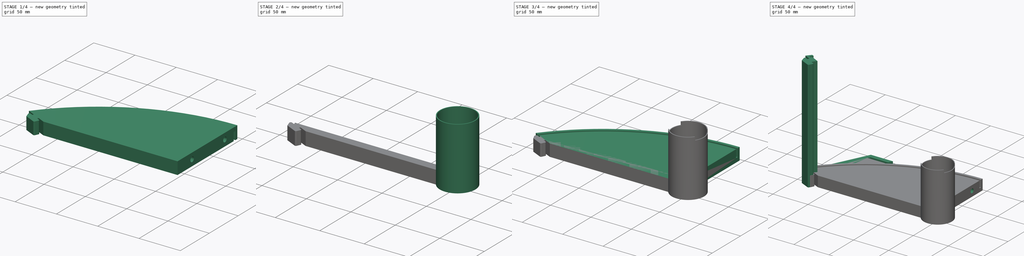
[diagram: build sequence overview — one tinted view per stage of 4, left to right]
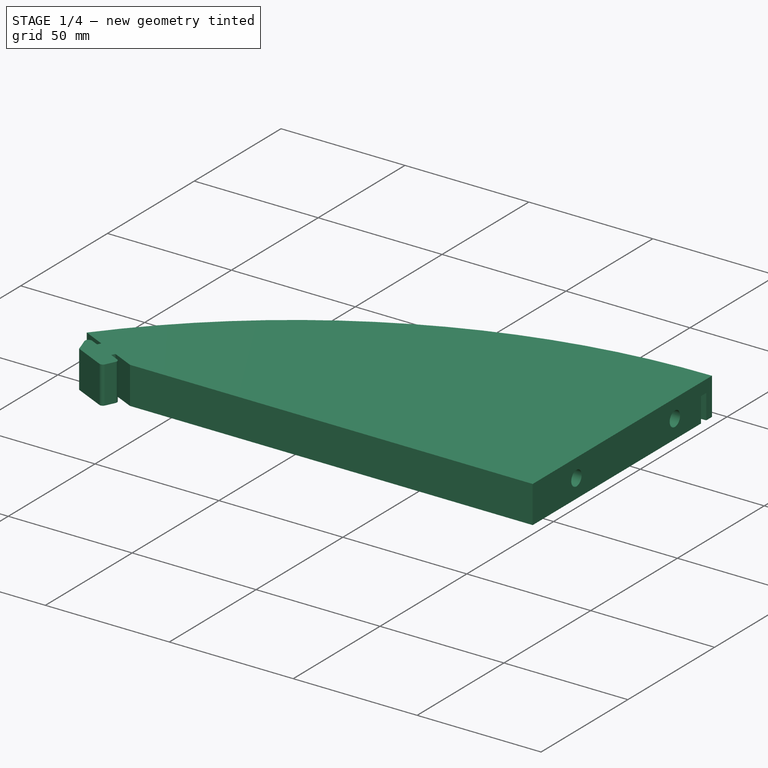
[diagram: stage 1 of 4 — iso view after this stage's code; geometry added in this stage tinted green]
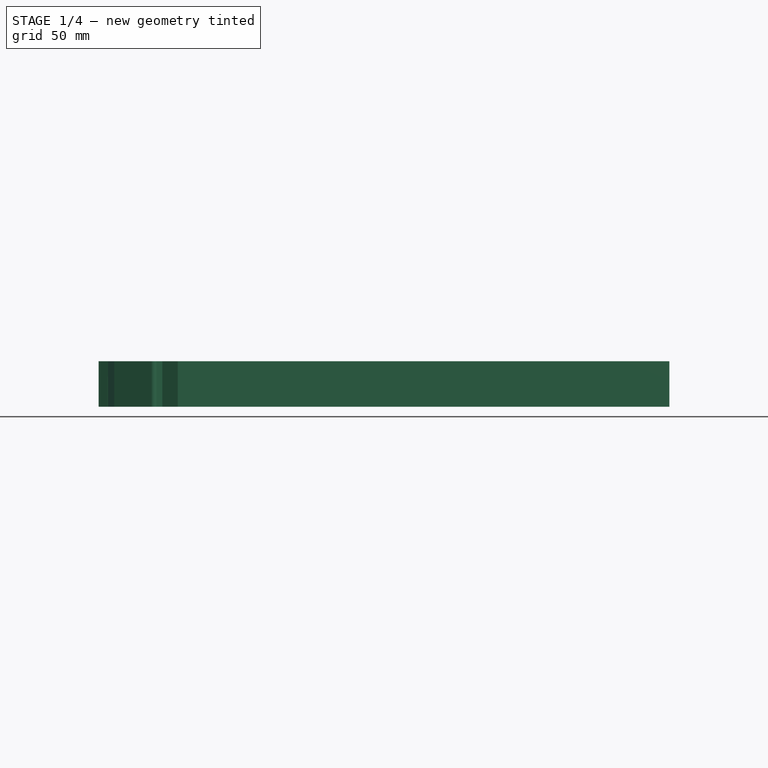
[diagram: stage 1 of 4 — front view after this stage's code; geometry added in this stage tinted green]
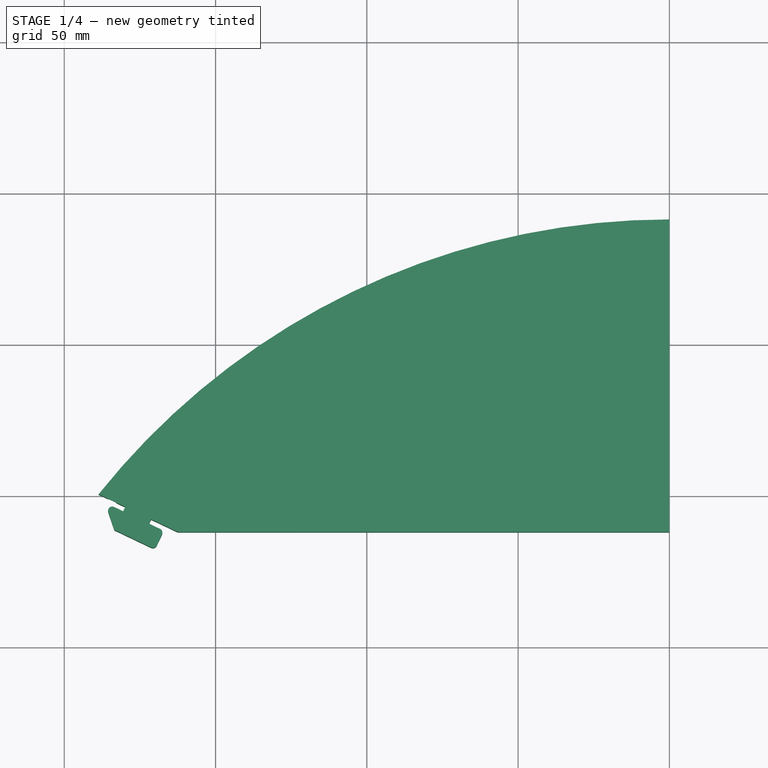
[diagram: stage 1 of 4 — top view after this stage's code; geometry added in this stage tinted green]
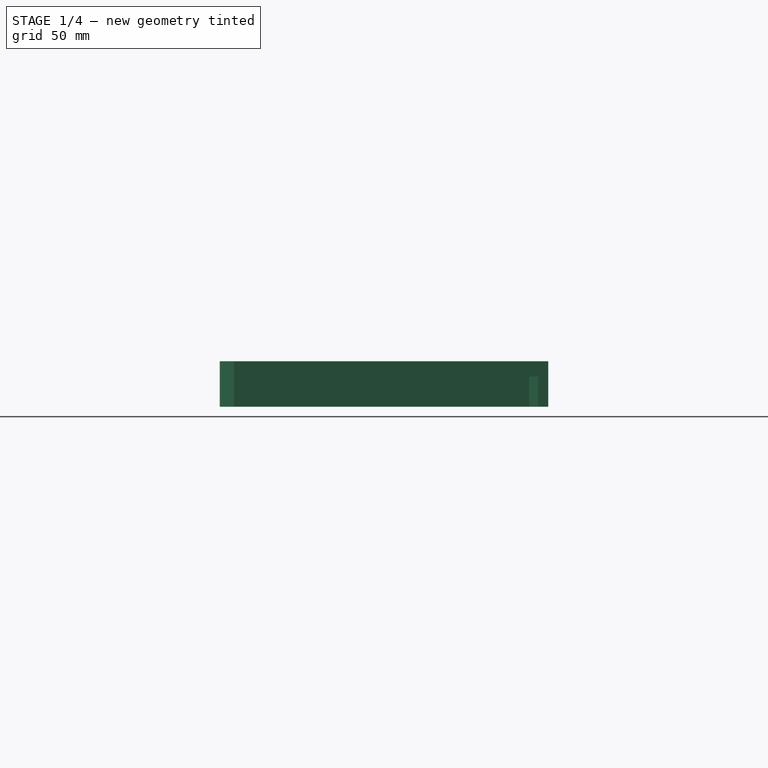
[diagram: stage 1 of 4 — right view after this stage's code; geometry added in this stage tinted green]
FCSTD DOCUMENT  (FreeCAD 1.1R40928 (Git))
Label: v400
License: All rights reserved
LicenseURL: http://en.wikipedia.org/wiki/All_rights_reserved
objects: Sketcher::SketchObject×12, PartDesign::Pocket×6, PartDesign::Body×6, App::Point×6, PartDesign::Pad×5, Measure::MeasureLength×1, App::DocumentObjectGroup×1, PartDesign::Fillet×1
note: 66 computed .brp shape members not serialized (recipe doc carries the construction recipe); baked Part::Feature solids carry a one-line shape summary decoded from their .brp

FEATURE [Sketcher::SketchObject] Sketch
  ArcFitTolerance = 0
  AttachmentSupport = -> [XY_Plane]
  ExternalTypes = [0]
  FullyConstrained = false
  MakeInternals = false
  MapMode = 5
  sketch-geometry (26):
    g0: LineSegment [constr] StartX=-188.65 StartY=0 StartZ=0 EndX=188.65 EndY=0 EndZ=0
    g1: LineSegment [constr] StartX=0 StartY=0 StartZ=0 EndX=0 EndY=-12 EndZ=0
    g2: LineSegment [constr] StartX=-162.5 StartY=-12 StartZ=0 EndX=162.5 EndY=-12 EndZ=0
    g3: LineSegment StartX=-162.5 StartY=-12 StartZ=0 EndX=0 EndY=-12 EndZ=0
    g4: LineSegment [constr] StartX=-188.65 StartY=0.47291 StartZ=0 EndX=-162.5 EndY=-12 EndZ=0
    g5: LineSegment [constr] StartX=-172.823 StartY=0.00552725 StartZ=0 EndX=-188.271 EndY=-32.3817 EndZ=0
    g6: LineSegment [constr] StartX=-179.862 StartY=-3.71862 StartZ=0 EndX=-171.288 EndY=-7.80847 EndZ=0
    g7: LineSegment StartX=-188.65 StartY=0.47291 StartZ=0 EndX=-179.862 EndY=-3.71862 EndZ=0
    g8: LineSegment StartX=-162.5 StartY=-12 StartZ=0 EndX=-171.288 EndY=-7.80847 EndZ=0
    g9: LineSegment StartX=-171.288 StartY=-7.80847 StartZ=0 EndX=-171.977 EndY=-9.25261 EndZ=0
    g10: LineSegment StartX=-174.728 StartY=-15.474 StartZ=0 EndX=-182.437 EndY=-11.7971 EndZ=0
    g11: LineSegment StartX=-180.551 StartY=-5.16275 StartZ=0 EndX=-179.862 EndY=-3.71862 EndZ=0
    g12: LineSegment StartX=-180.551 StartY=-5.16275 StartZ=0 EndX=-183.53 EndY=-3.74207 EndZ=0
    g13: LineSegment StartX=-183.479 StartY=-11.3003 StartZ=0 EndX=-182.437 EndY=-11.7971 EndZ=0
    g14: LineSegment StartX=-171.977 StartY=-9.25261 StartZ=0 EndX=-168.366 EndY=-10.9747 EndZ=0
    g15: LineSegment StartX=-167.705 StartY=-12.841 StartZ=0 EndX=-169.427 EndY=-16.4513 EndZ=0
    g16: LineSegment StartX=-171.294 StartY=-17.1122 StartZ=0 EndX=-174.728 EndY=-15.474 EndZ=0
    g17: ArcOfCircle CenterX=-168.969 CenterY=-12.2383 CenterZ=0 NormalX=0 NormalY=0 NormalZ=1 AngleXU=0 Radius=1.4 StartAngle=5.83813 EndAngle=7.40892
    g18: ArcOfCircle CenterX=-170.691 CenterY=-15.8486 CenterZ=0 NormalX=0 NormalY=0 NormalZ=1 AngleXU=0 Radius=1.4 StartAngle=4.26733 EndAngle=5.83813
    g19: LineSegment StartX=-185.458 StartY=-5.45478 StartZ=0 EndX=-183.479 EndY=-11.3003 EndZ=0
    g20: ArcOfCircle CenterX=-184.132 CenterY=-5.00569 CenterZ=0 NormalX=0 NormalY=0 NormalZ=1 AngleXU=0 Radius=1.4 StartAngle=1.12574 EndAngle=3.46815
    g21: LineSegment [constr] StartX=-179.862 StartY=-3.71862 StartZ=0 EndX=-185.587 EndY=-15.7197 EndZ=0
    g22: LineSegment [constr] StartX=-171.288 StartY=-7.80847 StartZ=0 EndX=-177.012 EndY=-19.8096 EndZ=0
    g23: GeomPoint [constr] X=0 Y=-150 Z=0
    g24: ArcOfCircle CenterX=0 CenterY=-150 CenterZ=0 NormalX=0 NormalY=0 NormalZ=1 AngleXU=0 Radius=241.311 StartAngle=1.5708 EndAngle=2.4683
    g25: LineSegment StartX=1.48e-14 StartY=91.3108 StartZ=0 EndX=0 EndY=-12 EndZ=0
  constraints (62):
    c: Symmetric(g0,g0,g-2)
    c: PointOnObject(g0,g-1)
    c: Coincident(g1,g-1)
    c: PointOnObject(g1,g-2)
    c: DistanceY(g1,g1) = 12
    c: Horizontal(g2)
    c: Symmetric(g2,g2,g1)
    c: Coincident(g4,g3)
    c: Symmetric(g4,g3,g5)
    c: PointOnObject(g6,g4)
    c: Distance(g6,g6) = 9.5
    c: Symmetric(g6,g6,g5)
    c: Coincident(g3,g2)
    c: Coincident(g3,g1)
    c: Coincident(g7,g6)
    c: Coincident(g8,g3)
    c: Coincident(g8,g6)
    c: Coincident(g9,g8)
    c: Coincident(g11,g7)
    c: Perpendicular(g9,g8)
    c: Parallel(g9,g11)
    c: DistanceX(g4,g1) = 188.65
    c: DistanceX(g3,g3) = 162.5
    c: Coincident(g13,g10)
    c: Coincident(g16,g10)
    c: Perpendicular(g5,g12)
    c: Parallel(g14,g12)
    c: Parallel(g13,g16)
    c: Distance(g12,g7) = 1.6
    c: Coincident(g11,g12)
    c: Coincident(g9,g14)
    c: Parallel(g12,g13)
    c: Parallel(g13,g10)
    c: Tangent(g14,g17) = 1.5708
    c: Tangent(g15,g17) = 1.5708
    c: Tangent(g15,g18) = 1.5708
    c: Tangent(g16,g18) = 1.5708
    c: Equal(g11,g9)
    c: Coincident(g13,g19)
    c: Perpendicular(g8,g15)
    c: Equal(g17,g18)
    c: Tangent(g12,g20) = -1.5708
    c: Tangent(g19,g20) = -1.5708
    c: Distance(g17,g18) = 4
    c: Radius(g17) = 1.4
    c: Coincident(g21,g7)
    c: PointOnObject(g13,g21)
    c: PointOnObject(g11,g21)
    c: Coincident(g22,g8)
    c: Symmetric(g21,g22,g5)
    c: Equal(g20,g18)
    c: Distance(g9,g14) = 4
    c: Distance(g12,g11) = 3.3
    c: Angle(g7,g0) = 0.445059
    c: Coincident(g7,g4)
    c: PointOnObject(g23,g-2)
    c: Distance(g1,g23) = 150
    c: Coincident(g24,g23)
    c: Coincident(g24,g7)
    c: PointOnObject(g24,g-2)
    c: Coincident(g25,g24)
    c: Coincident(g25,g3)
FEATURE [PartDesign::Pad] Pad
  Direction = (0,0,1)
  Length = 15
  Length2 = 10
  Profile = -> Sketch
  ReferenceAxis = -> Sketch [N_Axis]
  Suppressed = false
  Type = 0
FEATURE [Sketcher::SketchObject] Sketch001
  ArcFitTolerance = 0
  AttachmentOffset = pos=(0,0,-15) rot=(0,0,1;0rad)
  AttachmentSupport = -> [Pad]
  ExternalTypes = [0]
  FullyConstrained = false
  MakeInternals = false
  MapMode = 5
  sketch-geometry (6):
    g0: LineSegment [constr] StartX=0 StartY=0 StartZ=0 EndX=0 EndY=-150 EndZ=0
    g1: ArcOfCircle CenterX=0 CenterY=-150 CenterZ=0 NormalX=0 NormalY=0 NormalZ=1 AngleXU=0 Radius=235 StartAngle=1.5708 EndAngle=2.46394
    g2: ArcOfCircle CenterX=0 CenterY=-150 CenterZ=0 NormalX=0 NormalY=0 NormalZ=1 AngleXU=0 Radius=238 StartAngle=1.5708 EndAngle=2.46692
    g3: LineSegment StartX=1.46e-14 StartY=88 StartZ=0 EndX=1.44e-14 EndY=85 EndZ=0
    g4: LineSegment StartX=-185.858 StartY=-1.33601 StartZ=0 EndX=-183.076 EndY=-2.66282 EndZ=0
    g5: LineSegment [constr] StartX=-185.858 StartY=-1.33601 StartZ=0 EndX=0 EndY=0 EndZ=0
  constraints (15):
    c: Coincident(g0,g-1)
    c: Distance(g0) = 150
    c: PointOnObject(g0,g-2)
    c: Coincident(g1,g0)
    c: PointOnObject(g1,g-2)
    c: PointOnObject(g1,g-3)
    c: Radius(g1) = 235
    c: Coincident(g2,g1)
    c: PointOnObject(g2,g-3)
    c: PointOnObject(g2,g-2)
    c: Radius(g2) = 238
    c: Coincident(g3,g2)
    c: Coincident(g3,g1)
    c: Coincident(g4,g2)
    c: Coincident(g4,g1)
FEATURE [PartDesign::Pocket] Pocket
  BaseFeature = -> Pad
  Direction = (0,0,-1)
  Length = 10
  Length2 = 5
  Profile = -> Sketch001
  ReferenceAxis = -> Sketch001 [N_Axis]
  Reversed = true
  Suppressed = false
  Type = 0
FEATURE [Sketcher::SketchObject] Sketch004
  ArcFitTolerance = 0
  ExternalTypes = [0]
  FullyConstrained = false
  MakeInternals = false
  MapMode = 5
  Placement = pos=(1.7e-15,0,0) rot=(0.57735,0.57735,0.57735;2.0944rad)
  sketch-geometry (2):
    g0: Circle CenterX=13.2397 CenterY=7.5 CenterZ=0 NormalX=0 NormalY=0 NormalZ=1 AngleXU=0 Radius=3
    g1: Circle CenterX=69.9513 CenterY=7.5 CenterZ=0 NormalX=0 NormalY=0 NormalZ=1 AngleXU=0 Radius=3
  constraints (4):
    c: Diameter(g0) = 6
    c: Equal(g1,g0)
    c: DistanceY(g-1,g0) = 7.5
    c: DistanceY(g-1,g1) = 7.5
FEATURE [PartDesign::Pocket] Pocket003
  BaseFeature = -> Pocket
  Direction = (-1,-1e-16,1e-16)
  Length = 5
  Length2 = 5
  Profile = -> Sketch004
  ReferenceAxis = -> Sketch004 [N_Axis]
  Suppressed = false
  Type = 0
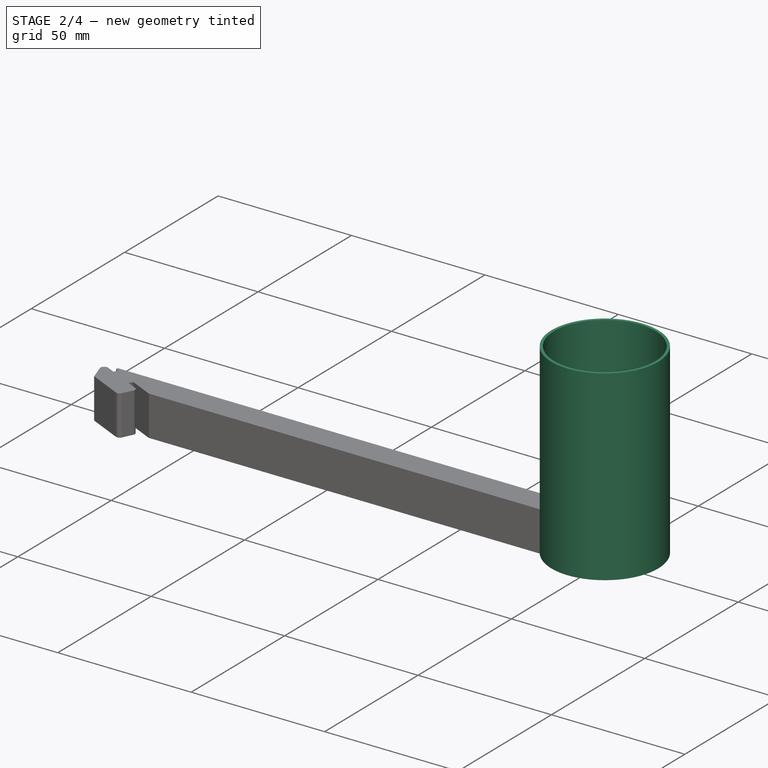
[diagram: stage 2 of 4 — iso view after this stage's code; geometry added in this stage tinted green]
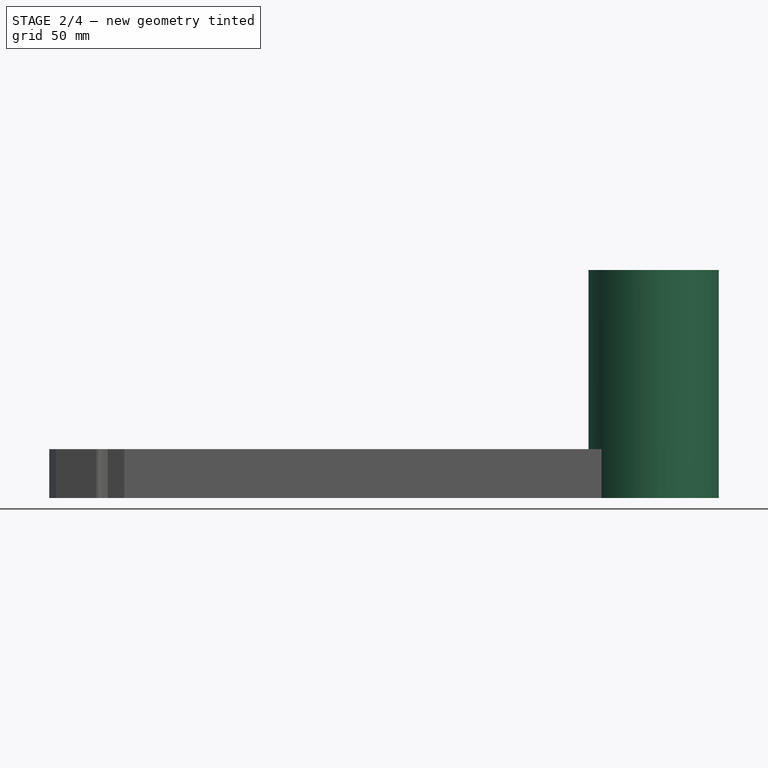
[diagram: stage 2 of 4 — front view after this stage's code; geometry added in this stage tinted green]
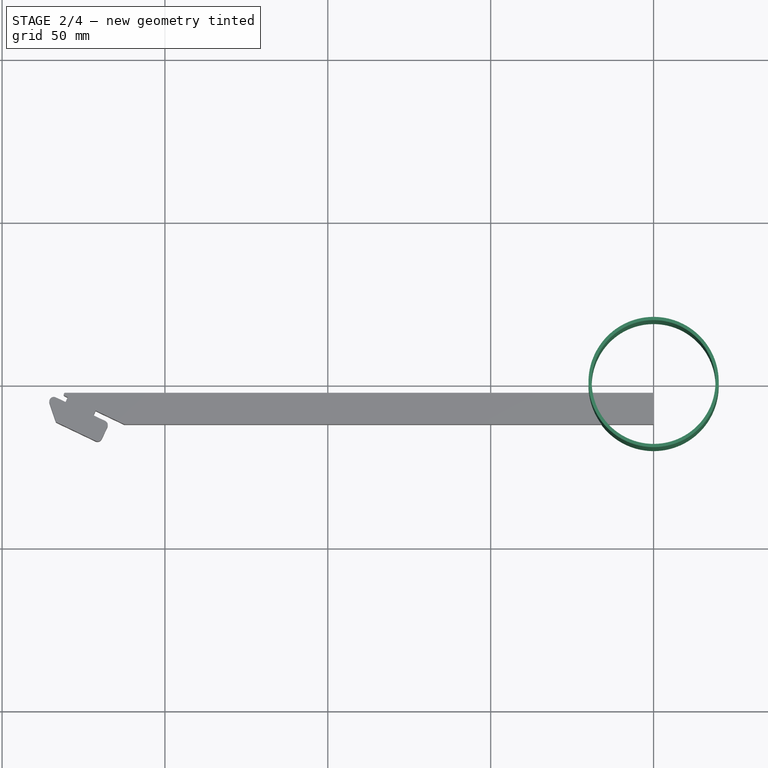
[diagram: stage 2 of 4 — top view after this stage's code; geometry added in this stage tinted green]
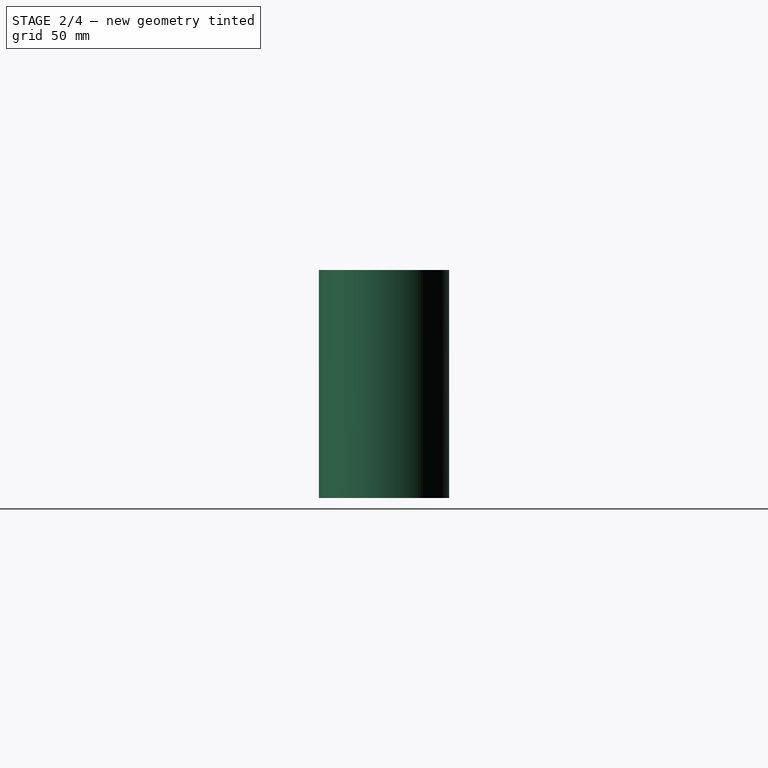
[diagram: stage 2 of 4 — right view after this stage's code; geometry added in this stage tinted green]
FEATURE [PartDesign::Body] Body006  label="Низ правая"
  AllowCompound = false
  Group = -> [Sketch012,Pad006,Sketch013,Pocket006,Sketch014,Pocket007]
  Origin = -> Origin006
  Placement = pos=(0,0,-16) rot=(0,0,1;0rad)
  Tip = -> Pocket007
FEATURE [App::Point] Origin007  label="Начало координат"
  Role = Origin
FEATURE [App::Point] Origin008  label="Начало координат"
  Role = Origin
FEATURE [App::Point] Origin010  label="Начало координат"
  Role = Origin
FEATURE [App::Point] Origin011  label="Начало координат"
  Role = Origin
FEATURE [App::Point] Origin015  label="Начало координат003"
  Role = Origin
FEATURE [Sketcher::SketchObject] Sketch016
  ArcFitTolerance = 1e-06
  AttachmentSupport = -> [XY_Plane008]
  ExternalTypes = [0]
  FullyConstrained = false
  MakeInternals = false
  MapMode = 5
  sketch-geometry (2):
    g0: ArcOfCircle CenterX=0 CenterY=-150.083 CenterZ=0 NormalX=0 NormalY=0 NormalZ=1 AngleXU=0 Radius=236.5 StartAngle=0.666751 EndAngle=2.47484
    g1: LineSegment StartX=-185.85 StartY=-3.82289 StartZ=0 EndX=185.85 EndY=-3.82289 EndZ=0
  constraints (6):
    c: Radius(g0) = 236.5
    c: PointOnObject(g0,g-2)
    c: Coincident(g1,g0)
    c: Coincident(g1,g0)
    c: DistanceX(g1,g1) = 371.7
    c: Horizontal(g1)
FEATURE [PartDesign::Body] Body008  label="Тело"
  AllowCompound = false
  Group = -> [Sketch016]
  Origin = -> Origin014
FEATURE [Measure::MeasureLength] Length  label="Length: 427,61 mm"
  Elements = -> [Body008]
  Length = 427.613
FEATURE [App::DocumentObjectGroup] Measurements
  Group = -> [Length]
FEATURE [Sketcher::SketchObject] Sketch007
  ArcFitTolerance = 0
  AttachmentSupport = -> [XY_Plane003]
  ExternalTypes = [0]
  FullyConstrained = true
  MakeInternals = false
  MapMode = 5
  sketch-geometry (2):
    g0: Circle CenterX=0 CenterY=0 CenterZ=0 NormalX=0 NormalY=0 NormalZ=1 AngleXU=0 Radius=20
    g1: Circle CenterX=0 CenterY=0 CenterZ=0 NormalX=0 NormalY=0 NormalZ=1 AngleXU=0 Radius=19
  constraints (4):
    c: Coincident(g0,g-1)
    c: Coincident(g1,g0)
    c: Radius(g0) = 20
    c: Radius(g1) = 19
FEATURE [PartDesign::Pad] Pad003
  Direction = (0,0,1)
  Length = 70
  Length2 = 10
  Profile = -> Sketch007
  ReferenceAxis = -> Sketch007 [N_Axis]
  Suppressed = false
  Type = 0
FEATURE [App::Point] Origin009  label="Начало координат"
  Role = Origin
FEATURE [PartDesign::Body] Body003  label="опора"
  AllowCompound = false
  Group = -> [Sketch007,Pad003,Sketch008,Pocket004]
  Origin = -> Origin003
  Placement = pos=(64,0,0) rot=(0,0,1;0rad)
  Tip = -> Pocket004
FEATURE [Sketcher::SketchObject] Sketch017
  ArcFitTolerance = 1e-06
  AttachmentSupport = -> [Pocket003]
  ExternalGeometry = -> [Pocket003]
  ExternalTypes = [0,0,0,0,0,0,0,0,0,0,0,0,0,0,0,0,0,0,0,0,0]
  FullyConstrained = true
  MakeInternals = false
  MapMode = 5
  Placement = pos=(0,0,0) rot=(1,0,0;3.14159rad)
  sketch-geometry (2):
    g0: LineSegment StartX=-182.798 StartY=2.31833 StartZ=0 EndX=0 EndY=2.31833 EndZ=0
    g1: LineSegment StartX=0 StartY=2.31833 StartZ=0 EndX=0 EndY=-85 EndZ=0
  constraints (5):
    c: Coincident(g-18,g0)
    c: PointOnObject(g0,g-23)
    c: Horizontal(g0)
    c: Coincident(g0,g1)
    c: Coincident(g1,g-23)
FEATURE [PartDesign::Pocket] Pocket008
  BaseFeature = -> Pocket003
  Direction = (0,0,1)
  Length = 5
  Length2 = 5
  Profile = -> Sketch017
  ReferenceAxis = -> Sketch017 [N_Axis]
  Refine = true
  Suppressed = false
  Type = 1
FEATURE [PartDesign::Fillet] Fillet
  Base = -> Pocket008 [Edge45]
  BaseFeature = -> Pocket008
  Radius = 0.5
  Refine = true
  SupportTransform = false
  Suppressed = false
  UseAllEdges = false
FEATURE [PartDesign::Body] Body  label="Низ левая"
  AllowCompound = false
  Group = -> [Sketch,Pad,Sketch001,Pocket,Sketch004,Pocket003,Sketch017,Pocket008,Fillet]
  Origin = -> Origin
  Placement = pos=(314,0,-3.85e-14) rot=(0,-1,0;3.14159rad)
  Tip = -> Fillet
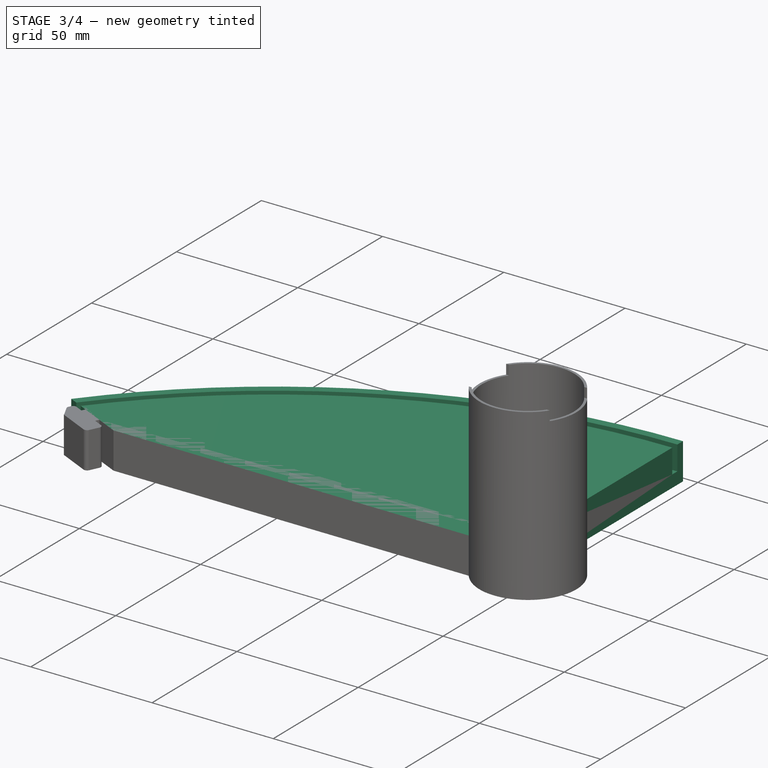
[diagram: stage 3 of 4 — iso view after this stage's code; geometry added in this stage tinted green]
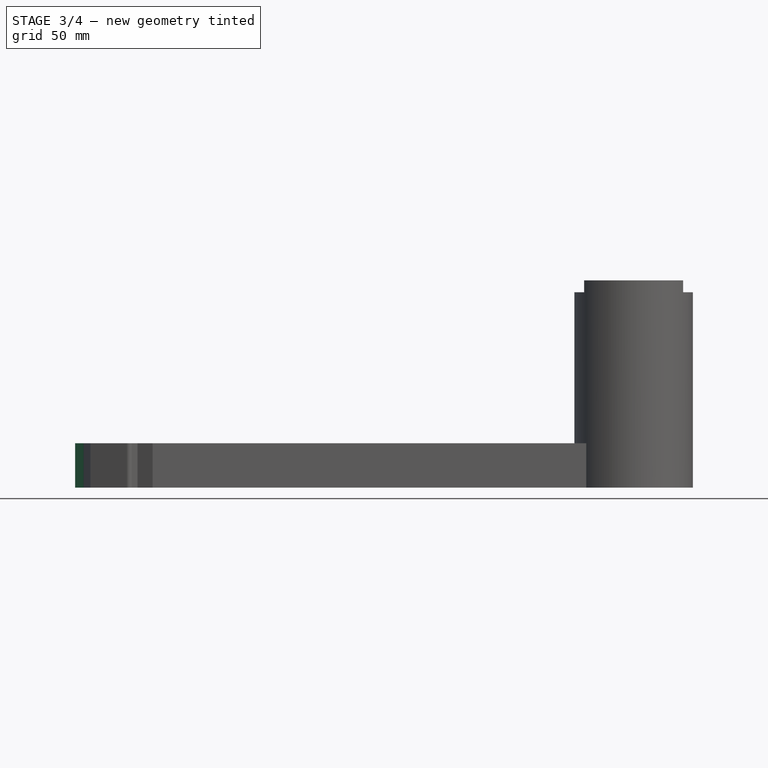
[diagram: stage 3 of 4 — front view after this stage's code; geometry added in this stage tinted green]
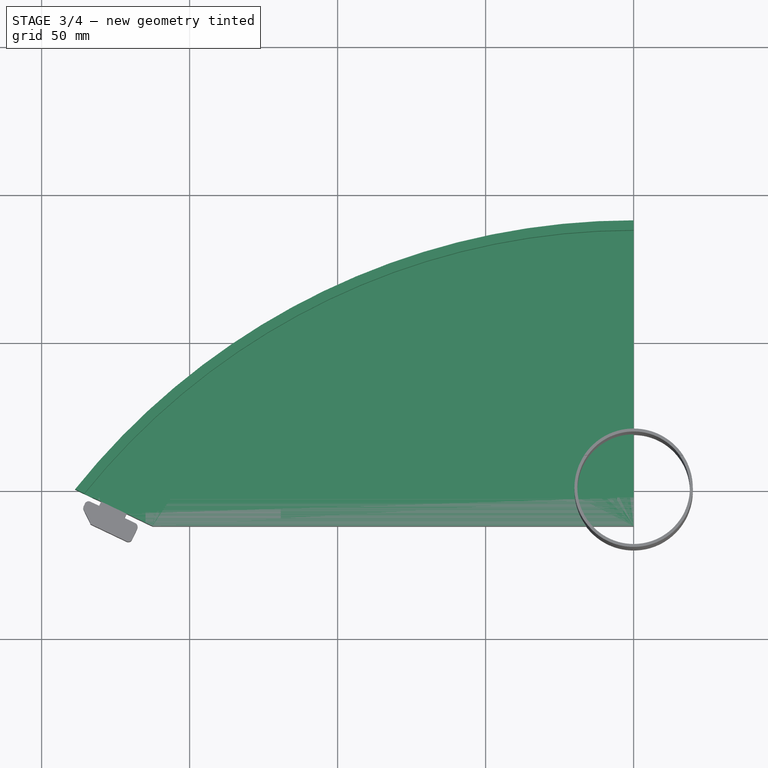
[diagram: stage 3 of 4 — top view after this stage's code; geometry added in this stage tinted green]
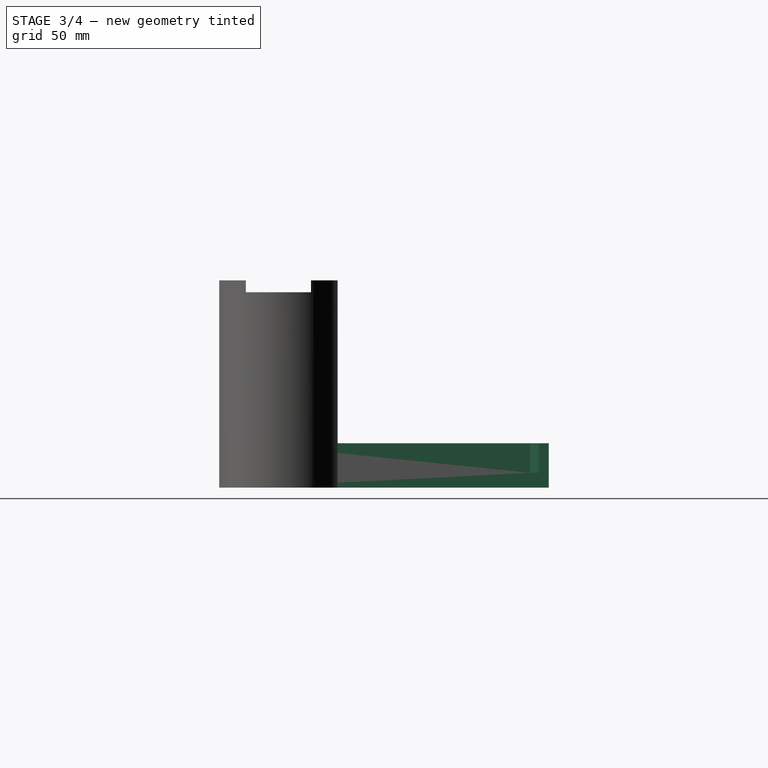
[diagram: stage 3 of 4 — right view after this stage's code; geometry added in this stage tinted green]
FEATURE [PartDesign::Body] Body005  label="передние салазки"
  AllowCompound = false
  Group = -> [Sketch010,Pad005]
  Origin = -> Origin005
  Placement = pos=(0,-176,0) rot=(0,0,1;0rad)
  Tip = -> Pad005
FEATURE [Sketcher::SketchObject] Sketch012
  ArcFitTolerance = 0
  AttachmentSupport = -> [XY_Plane006]
  ExternalTypes = [0]
  FullyConstrained = false
  MakeInternals = false
  MapMode = 5
  sketch-geometry (26):
    g0: LineSegment [constr] StartX=-188.65 StartY=0 StartZ=0 EndX=188.65 EndY=0 EndZ=0
    g1: LineSegment [constr] StartX=0 StartY=0 StartZ=0 EndX=0 EndY=-12 EndZ=0
    g2: LineSegment [constr] StartX=-162.5 StartY=-12 StartZ=0 EndX=162.5 EndY=-12 EndZ=0
    g3: LineSegment StartX=-162.5 StartY=-12 StartZ=0 EndX=0 EndY=-12 EndZ=0
    g4: LineSegment [constr] StartX=-188.65 StartY=0.47291 StartZ=0 EndX=-162.5 EndY=-12 EndZ=0
    g5: LineSegment [constr] StartX=-172.823 StartY=0.00543543 StartZ=0 EndX=-188.271 EndY=-32.3816 EndZ=0
    g6: LineSegment [constr] StartX=-179.862 StartY=-3.71862 StartZ=0 EndX=-171.288 EndY=-7.80847 EndZ=0
    g7: LineSegment StartX=-188.65 StartY=0.47291 StartZ=0 EndX=-179.862 EndY=-3.71862 EndZ=0
    g8: LineSegment StartX=-162.5 StartY=-12 StartZ=0 EndX=-171.288 EndY=-7.80847 EndZ=0
    g9: LineSegment StartX=-171.288 StartY=-7.80847 StartZ=0 EndX=-172.364 EndY=-10.0649 EndZ=0
    g10: LineSegment StartX=-174.728 StartY=-15.3633 StartZ=0 EndX=-182.609 EndY=-11.6044 EndZ=0
    g11: LineSegment StartX=-180.939 StartY=-5.97508 StartZ=0 EndX=-179.862 EndY=-3.71862 EndZ=0
    g12: LineSegment StartX=-180.939 StartY=-5.97508 StartZ=0 EndX=-183.917 EndY=-4.55439 EndZ=0
    g13: LineSegment StartX=-183.436 StartY=-11.2101 StartZ=0 EndX=-182.609 EndY=-11.6044 EndZ=0
    g14: LineSegment StartX=-172.364 StartY=-10.0649 StartZ=0 EndX=-168.754 EndY=-11.787 EndZ=0
    g15: LineSegment StartX=-168.093 StartY=-13.6533 StartZ=0 EndX=-169.384 EndY=-16.3611 EndZ=0
    g16: LineSegment StartX=-171.251 StartY=-17.022 StartZ=0 EndX=-174.728 EndY=-15.3633 EndZ=0
    g17: ArcOfCircle CenterX=-169.356 CenterY=-13.0506 CenterZ=0 NormalX=0 NormalY=0 NormalZ=1 AngleXU=0 Radius=1.4 StartAngle=5.83813 EndAngle=7.40892
    g18: ArcOfCircle CenterX=-170.648 CenterY=-15.7584 CenterZ=0 NormalX=0 NormalY=0 NormalZ=1 AngleXU=0 Radius=1.4 StartAngle=4.26733 EndAngle=5.83813
    g19: LineSegment StartX=-185.777 StartY=-6.43429 StartZ=0 EndX=-183.436 EndY=-11.2101 EndZ=0
    g20: ArcOfCircle CenterX=-184.52 CenterY=-5.81801 CenterZ=0 NormalX=0 NormalY=0 NormalZ=1 AngleXU=0 Radius=1.4 StartAngle=1.12574 EndAngle=3.59741
    g21: LineSegment [constr] StartX=-179.862 StartY=-3.71862 StartZ=0 EndX=-185.585 EndY=-15.7159 EndZ=0
    g22: LineSegment [constr] StartX=-171.288 StartY=-7.80847 StartZ=0 EndX=-177.01 EndY=-19.8058 EndZ=0
    g23: GeomPoint [constr] X=0 Y=-150 Z=0
    g24: ArcOfCircle CenterX=0 CenterY=-150 CenterZ=0 NormalX=0 NormalY=0 NormalZ=1 AngleXU=0 Radius=241.311 StartAngle=1.5708 EndAngle=2.4683
    g25: LineSegment StartX=1.48e-14 StartY=91.3108 StartZ=0 EndX=0 EndY=-12 EndZ=0
  constraints (62):
    c: Symmetric(g0,g0,g-2)
    c: PointOnObject(g0,g-1)
    c: Coincident(g1,g-1)
    c: PointOnObject(g1,g-2)
    c: DistanceY(g1,g1) = 12
    c: Horizontal(g2)
    c: Symmetric(g2,g2,g1)
    c: Coincident(g4,g3)
    c: Symmetric(g4,g3,g5)
    c: PointOnObject(g6,g4)
    c: Distance(g6,g6) = 9.5
    c: Symmetric(g6,g6,g5)
    c: Coincident(g3,g2)
    c: Coincident(g3,g1)
    c: Coincident(g7,g6)
    c: Coincident(g8,g3)
    c: Coincident(g8,g6)
    c: Coincident(g9,g8)
    c: Coincident(g11,g7)
    c: Perpendicular(g9,g8)
    c: Parallel(g9,g11)
    c: DistanceX(g4,g1) = 188.65
    c: DistanceX(g3,g3) = 162.5
    c: Coincident(g13,g10)
    c: Coincident(g16,g10)
    c: Perpendicular(g5,g12)
    c: Parallel(g14,g12)
    c: Parallel(g13,g16)
    c: Distance(g12,g7) = 2.5
    c: Coincident(g11,g12)
    c: Coincident(g9,g14)
    c: Parallel(g12,g13)
    c: Parallel(g13,g10)
    c: Tangent(g14,g17) = 1.5708
    c: Tangent(g15,g17) = 1.5708
    c: Tangent(g15,g18) = 1.5708
    c: Tangent(g16,g18) = 1.5708
    c: Equal(g11,g9)
    c: Coincident(g13,g19)
    c: Perpendicular(g8,g15)
    c: Equal(g17,g18)
    c: Tangent(g12,g20) = -1.5708
    c: Tangent(g19,g20) = -1.5708
    c: Distance(g17,g18) = 3
    c: Radius(g17) = 1.4
    c: Coincident(g21,g7)
    c: PointOnObject(g13,g21)
    c: PointOnObject(g11,g21)
    c: Coincident(g22,g8)
    c: Symmetric(g21,g22,g5)
    c: Equal(g20,g18)
    c: Distance(g9,g14) = 4
    c: Distance(g12,g11) = 3.3
    c: Angle(g7,g0) = 0.445059
    c: Coincident(g7,g4)
    c: PointOnObject(g23,g-2)
    c: Distance(g1,g23) = 150
    c: Coincident(g24,g23)
    c: Coincident(g24,g7)
    c: PointOnObject(g24,g-2)
    c: Coincident(g25,g24)
    c: Coincident(g25,g3)
FEATURE [PartDesign::Pad] Pad006
  Direction = (0,0,1)
  Length = 15
  Length2 = 10
  Profile = -> Sketch012
  ReferenceAxis = -> Sketch012 [N_Axis]
  Suppressed = false
  Type = 0
FEATURE [Sketcher::SketchObject] Sketch013
  ArcFitTolerance = 0
  AttachmentSupport = -> [Pad006]
  ExternalTypes = [0]
  FullyConstrained = true
  MakeInternals = false
  MapMode = 5
  Placement = pos=(0,0,15) rot=(0,0,1;0rad)
  sketch-geometry (5):
    g0: LineSegment [constr] StartX=0 StartY=0 StartZ=0 EndX=0 EndY=-150 EndZ=0
    g1: ArcOfCircle CenterX=0 CenterY=-150 CenterZ=0 NormalX=0 NormalY=0 NormalZ=1 AngleXU=0 Radius=235 StartAngle=1.5708 EndAngle=2.46394
    g2: ArcOfCircle CenterX=0 CenterY=-150 CenterZ=0 NormalX=0 NormalY=0 NormalZ=1 AngleXU=0 Radius=238 StartAngle=1.5708 EndAngle=2.46692
    g3: LineSegment StartX=1.46e-14 StartY=88 StartZ=0 EndX=1.44e-14 EndY=85 EndZ=0
    g4: LineSegment StartX=-185.858 StartY=-1.33601 StartZ=0 EndX=-183.076 EndY=-2.66282 EndZ=0
  constraints (15):
    c: Coincident(g0,g-1)
    c: Distance(g0) = 150
    c: PointOnObject(g0,g-2)
    c: Coincident(g1,g0)
    c: PointOnObject(g1,g-2)
    c: PointOnObject(g1,g-3)
    c: Radius(g1) = 235
    c: Coincident(g2,g1)
    c: PointOnObject(g2,g-3)
    c: PointOnObject(g2,g-2)
    c: Radius(g2) = 238
    c: Coincident(g3,g2)
    c: Coincident(g3,g1)
    c: Coincident(g4,g2)
    c: Coincident(g4,g1)
FEATURE [PartDesign::Pocket] Pocket006
  BaseFeature = -> Pad006
  Direction = (0,0,-1)
  Length = 10
  Length2 = 5
  Profile = -> Sketch013
  ReferenceAxis = -> Sketch013 [N_Axis]
  Suppressed = false
  Type = 0
FEATURE [Sketcher::SketchObject] Sketch008
  ArcFitTolerance = 0
  AttachmentSupport = -> [Pad003]
  ExternalTypes = [0]
  FullyConstrained = false
  MakeInternals = false
  MapMode = 5
  Placement = pos=(0,0,70) rot=(0,0,1;0rad)
  sketch-geometry (4):
    g0: LineSegment StartX=-44.9399 StartY=11 StartZ=0 EndX=44.9399 EndY=11 EndZ=0
    g1: LineSegment StartX=44.9399 StartY=11 StartZ=0 EndX=44.9399 EndY=-11 EndZ=0
    g2: LineSegment StartX=44.9399 StartY=-11 StartZ=0 EndX=-44.9399 EndY=-11 EndZ=0
    g3: LineSegment StartX=-44.9399 StartY=-11 StartZ=0 EndX=-44.9399 EndY=11 EndZ=0
  constraints (9):
    c: Coincident(g0,g1)
    c: Coincident(g1,g2)
    c: Coincident(g2,g3)
    c: Coincident(g3,g0)
    c: Horizontal(g2)
    c: Vertical(g3)
    c: Symmetric(g0,g1,g-1)
    c: Symmetric(g0,g0,g-2)
    c: DistanceY(g1,g1) = 22
FEATURE [PartDesign::Pocket] Pocket004
  BaseFeature = -> Pad003
  Direction = (0,0,-1)
  Length = 4
  Length2 = 5
  Profile = -> Sketch008
  ReferenceAxis = -> Sketch008 [N_Axis]
  Suppressed = false
  Type = 0
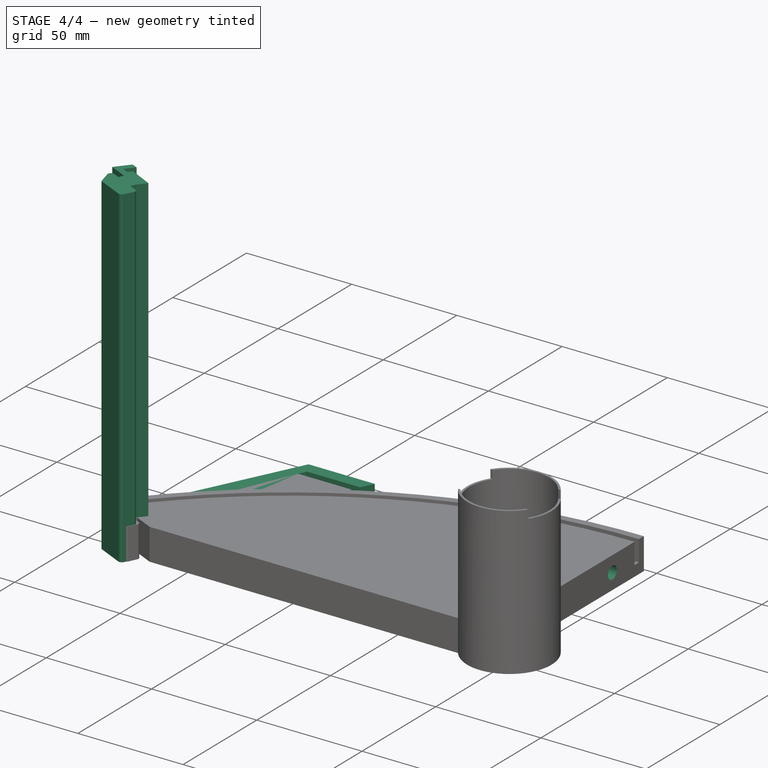
[diagram: stage 4 of 4 — iso view after this stage's code; geometry added in this stage tinted green]
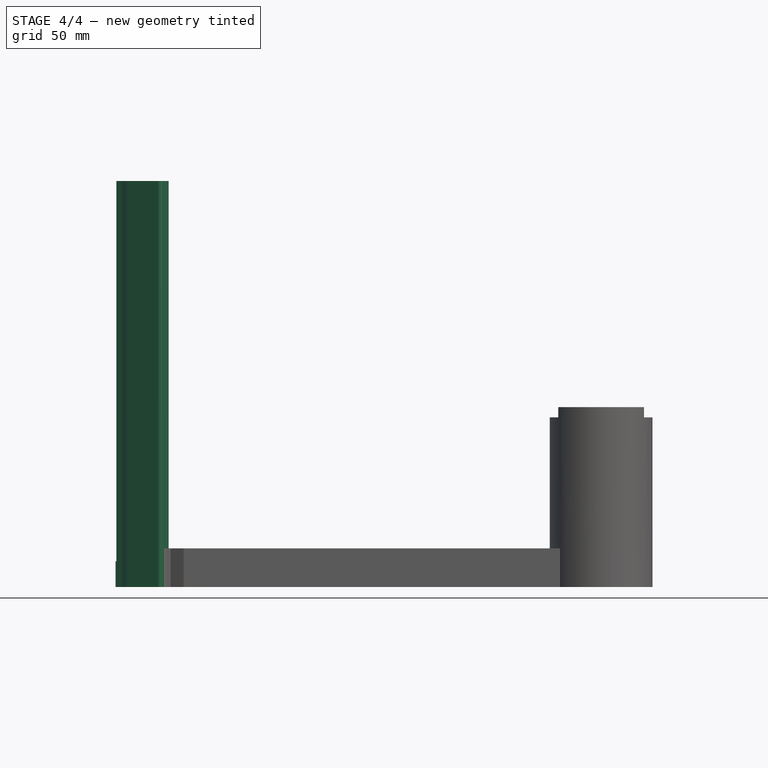
[diagram: stage 4 of 4 — front view after this stage's code; geometry added in this stage tinted green]
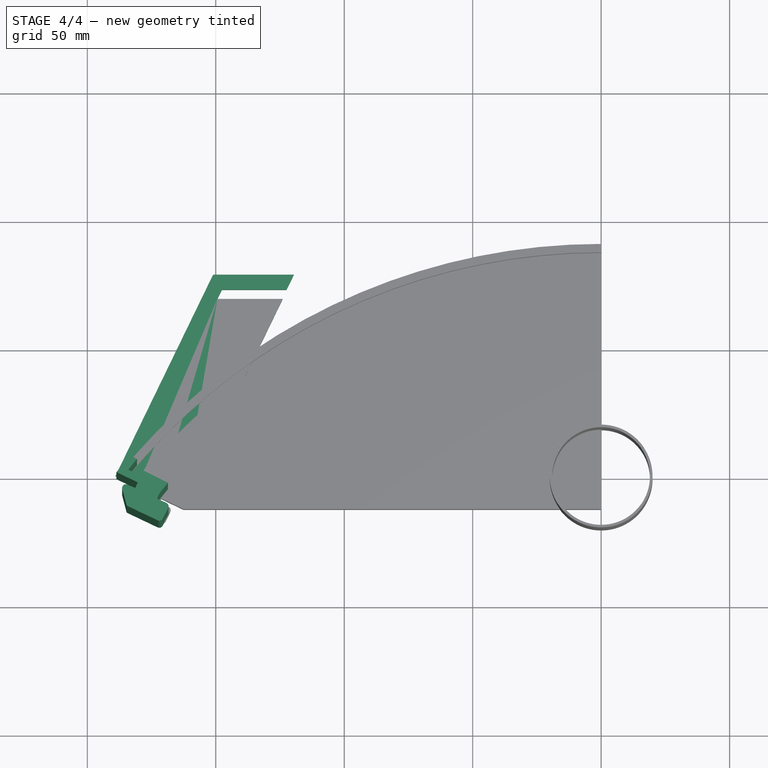
[diagram: stage 4 of 4 — top view after this stage's code; geometry added in this stage tinted green]
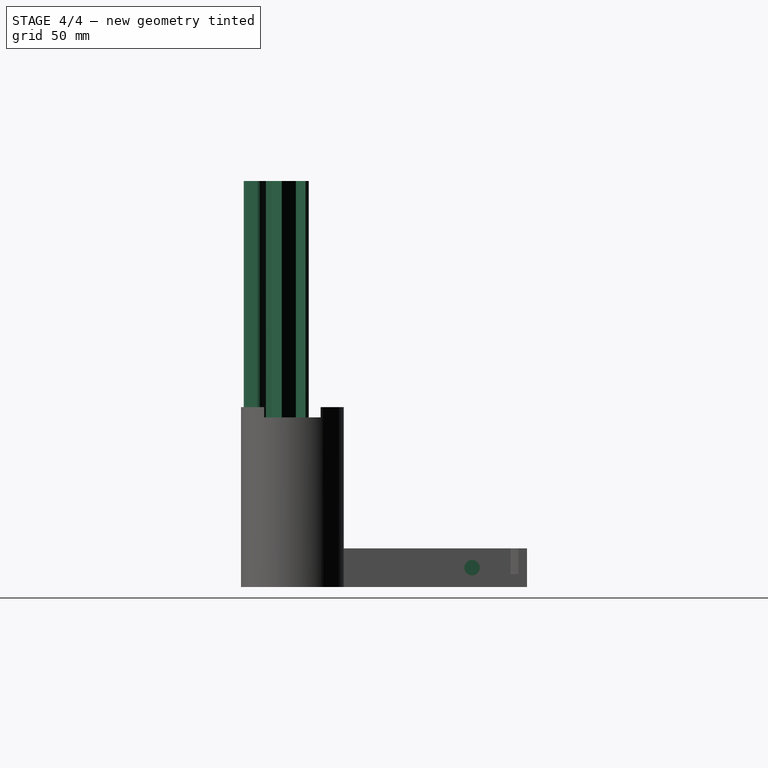
[diagram: stage 4 of 4 — right view after this stage's code; geometry added in this stage tinted green]
FEATURE [Sketcher::SketchObject] Sketch005
  ArcFitTolerance = 0
  AttachmentSupport = -> [XY_Plane001]
  ExternalTypes = [0]
  FullyConstrained = false
  MakeInternals = false
  MapMode = 5
  sketch-geometry (18):
    g0: LineSegment StartX=-181.381 StartY=-6.27253 StartZ=0 EndX=-180.356 EndY=-3.99209 EndZ=0
    g1: LineSegment StartX=-181.381 StartY=-6.27253 StartZ=0 EndX=-184.2 EndY=-4.93311 EndZ=0
    g2: LineSegment StartX=-186.462 StartY=-6.26227 StartZ=0 EndX=-184.663 EndY=-13.0653 EndZ=0
    g3: LineSegment StartX=-184.663 StartY=-13.0653 StartZ=0 EndX=-172.635 EndY=-18.7803 EndZ=0
    g4: LineSegment StartX=-170.754 StartY=-18.3328 StartZ=0 EndX=-168.643 EndY=-14.2758 EndZ=0
    g5: LineSegment StartX=-169.066 StartY=-12.1152 StartZ=0 EndX=-172.814 EndY=-10.3341 EndZ=0
    g6: LineSegment StartX=-171.79 StartY=-8.05362 StartZ=0 EndX=-172.814 EndY=-10.3341 EndZ=0
    g7: ArcOfCircle CenterX=-184.962 CenterY=-6.22501 CenterZ=0 NormalX=0 NormalY=0 NormalZ=1 AngleXU=0 Radius=1.5 StartAngle=1.03775 EndAngle=3.16643
    g8: ArcOfCircle CenterX=-171.96 CenterY=-17.4409 CenterZ=0 NormalX=0 NormalY=0 NormalZ=1 AngleXU=0 Radius=1.5 StartAngle=4.24537 EndAngle=5.64641
    g9: ArcOfCircle CenterX=-169.854 CenterY=-13.3911 CenterZ=0 NormalX=0 NormalY=0 NormalZ=1 AngleXU=0 Radius=1.5 StartAngle=5.65235 EndAngle=7.30025
    g10: LineSegment StartX=-180.356 StartY=-3.99209 StartZ=0 EndX=-188.672 EndY=-0.034084 EndZ=0
    g11: LineSegment StartX=-188.672 StartY=-0.034084 StartZ=0 EndX=-183.449 EndY=6.34344 EndZ=0
    g12: LineSegment StartX=-171.79 StartY=-8.05362 StartZ=0 EndX=-168.597 EndY=-4.15448 EndZ=0
    g13: LineSegment StartX=-168.597 StartY=-4.15448 StartZ=0 EndX=-179.762 EndY=1.37179 EndZ=0
    g14: LineSegment StartX=-183.449 StartY=6.34344 StartZ=0 EndX=-180.676 EndY=5.09958 EndZ=0
    g15: LineSegment StartX=-180.676 StartY=5.09958 StartZ=0 EndX=-184.098 EndY=0.920067 EndZ=0
    g16: LineSegment StartX=-184.098 StartY=0.920067 StartZ=0 EndX=-181.263 EndY=-0.461492 EndZ=0
    g17: LineSegment StartX=-179.762 StartY=1.37179 StartZ=0 EndX=-181.263 EndY=-0.461492 EndZ=0
  constraints (29):
    c: Coincident(g1,g0)
    c: Coincident(g3,g2)
    c: Coincident(g6,g5)
    c: Coincident(g7,g1)
    c: Coincident(g7,g2)
    c: Coincident(g8,g4)
    c: Coincident(g8,g3)
    c: Coincident(g9,g5)
    c: Coincident(g9,g4)
    c: Equal(g7,g9)
    c: Equal(g9,g8)
    c: Radius(g9) = 1.5
    c: Parallel(g6,g0)
    c: Distance(g6) = 2.5
    c: Equal(g0,g6)
    c: Parallel(g1,g3)
    c: Parallel(g3,g5)
    c: Coincident(g10,g0)
    c: Coincident(g11,g10)
    c: Coincident(g12,g6)
    c: Coincident(g13,g12)
    c: Coincident(g14,g11)
    c: Coincident(g15,g14)
    c: Coincident(g16,g15)
    c: Coincident(g17,g13)
    c: Coincident(g17,g16)
    c: Parallel(g11,g15)
    c: Parallel(g15,g17)
    c: Parallel(g17,g12)
FEATURE [PartDesign::Pad] Pad001
  Direction = (0,0,1)
  Length = 158
  Length2 = 10
  Profile = -> Sketch005
  ReferenceAxis = -> Sketch005 [N_Axis]
  Suppressed = false
  Type = 0
FEATURE [PartDesign::Body] Body001  label="крепление"
  AllowCompound = false
  Group = -> [Sketch005,Pad001]
  Origin = -> Origin001
  Placement = pos=(-89,0,21) rot=(0,0,1;0rad)
  Tip = -> Pad001
FEATURE [Sketcher::SketchObject] Sketch010
  ArcFitTolerance = 0
  AttachmentSupport = -> [XY_Plane005]
  ExternalTypes = [0]
  FullyConstrained = false
  MakeInternals = false
  MapMode = 5
  sketch-geometry (19):
    g0: LineSegment StartX=-181.582 StartY=-5.31378 StartZ=0 EndX=-180.492 EndY=-3.06439 EndZ=0
    g1: LineSegment StartX=-171.877 StartY=-7.06988 StartZ=0 EndX=-172.968 EndY=-9.31927 EndZ=0
    g2: LineSegment StartX=-172.968 StartY=-9.31927 StartZ=0 EndX=-169.369 EndY=-11.0649 EndZ=0
    g3: LineSegment StartX=-168.767 StartY=-12.8018 StartZ=0 EndX=-170.905 EndY=-17.2106 EndZ=0
    g4: LineSegment StartX=-172.642 StartY=-17.813 StartZ=0 EndX=-184.72 EndY=-11.955 EndZ=0
    g5: LineSegment StartX=-184.72 StartY=-11.955 StartZ=0 EndX=-186.38 EndY=-5.36063 EndZ=0
    g6: LineSegment StartX=-184.552 StartY=-3.87368 StartZ=0 EndX=-181.582 EndY=-5.31378 EndZ=0
    g7: LineSegment StartX=-180.492 StartY=-3.06439 StartZ=0 EndX=-189.039 EndY=1.08136 EndZ=0
    g8: LineSegment StartX=-171.877 StartY=-7.06988 StartZ=0 EndX=-163.33 EndY=-11.2156 EndZ=0
    g9: ArcOfCircle CenterX=-185.119 CenterY=-5.04336 CenterZ=0 NormalX=0 NormalY=0 NormalZ=1 AngleXU=0 Radius=1.3 StartAngle=1.11921 EndAngle=3.38814
    g10: ArcOfCircle CenterX=-169.936 CenterY=-12.2345 CenterZ=0 NormalX=0 NormalY=0 NormalZ=1 AngleXU=0 Radius=1.3 StartAngle=5.8316 EndAngle=7.40239
    g11: ArcOfCircle CenterX=-172.075 CenterY=-16.6433 CenterZ=0 NormalX=0 NormalY=0 NormalZ=1 AngleXU=0 Radius=1.3 StartAngle=4.2608 EndAngle=5.8316
    g12: LineSegment StartX=-189.039 StartY=1.08136 StartZ=0 EndX=-151.026 EndY=79.4563 EndZ=0
    g13: LineSegment StartX=-163.33 StartY=-11.2156 StartZ=0 EndX=-123.939 EndY=70 EndZ=0
    g14: LineSegment StartX=-123.939 StartY=70 StartZ=0 EndX=-149.371 EndY=70 EndZ=0
    g15: LineSegment StartX=-149.371 StartY=70 StartZ=0 EndX=-147.625 EndY=73.599 EndZ=0
    g16: LineSegment StartX=-147.625 StartY=73.599 StartZ=0 EndX=-122.45 EndY=73.599 EndZ=0
    g17: LineSegment StartX=-122.45 StartY=73.599 StartZ=0 EndX=-119.609 EndY=79.4563 EndZ=0
    g18: LineSegment StartX=-119.609 StartY=79.4563 StartZ=0 EndX=-151.026 EndY=79.4563 EndZ=0
  constraints (48):
    c: Coincident(g2,g1)
    c: Coincident(g5,g4)
    c: Coincident(g6,g0)
    c: Coincident(g7,g0)
    c: Coincident(g8,g1)
    c: Parallel(g1,g0)
    c: Equal(g1,g0)
    c: Parallel(g4,g6)
    c: Parallel(g6,g7)
    c: Parallel(g7,g8)
    c: Parallel(g8,g2)
    c: Tangent(g6,g9) = 1.5708
    c: Tangent(g5,g9) = 1.5708
    c: Tangent(g2,g10) = 1.5708
    c: Tangent(g3,g10) = 1.5708
    c: Tangent(g3,g11) = 1.5708
    c: Tangent(g4,g11) = 1.5708
    c: Equal(g11,g9)
    c: Distance(g0) = 2.5
    c: Coincident(g12,g7)
    c: Coincident(g13,g8)
    c: Perpendicular(g8,g13)
    c: Parallel(g13,g12)
    c: Distance(g8) = 9.5
    c: Equal(g7,g8)
    c: Distance(g6) = 3.3
    c: Perpendicular(g0,g7)
    c: Angle(g4,g5) = 2.26893
    c: Distance(g1,g4) = 7.5
    c: Distance(g0,g1) = 9.5
    c: Distance(g5) = 6.8
    c: Distance(g2) = 4
    c: Perpendicular(g8,g3)
    c: Radius(g10) = 1.3
    c: Equal(g9,g10)
    c: DistanceY(g-1,g13) = 70
    c: Coincident(g14,g13)
    c: Horizontal(g14)
    c: Coincident(g15,g14)
    c: Coincident(g16,g15)
    c: Horizontal(g16)
    c: Coincident(g17,g16)
    c: Coincident(g18,g17)
    c: Coincident(g18,g12)
    c: Parallel(g17,g15)
    c: Parallel(g15,g12)
    c: Parallel(g18,g16)
    c: Distance(g15,g14) = 4
FEATURE [PartDesign::Pad] Pad005
  Direction = (0,0,1)
  Length = 10
  Length2 = 10
  Profile = -> Sketch010
  ReferenceAxis = -> Sketch010 [N_Axis]
  Suppressed = false
  Type = 0
FEATURE [Sketcher::SketchObject] Sketch014
  ArcFitTolerance = 0
  ExternalTypes = [0]
  FullyConstrained = false
  MakeInternals = false
  MapMode = 5
  Placement = pos=(1.7e-15,0,0) rot=(0.57735,0.57735,0.57735;2.0944rad)
  sketch-geometry (2):
    g0: Circle CenterX=13.2397 CenterY=7.5 CenterZ=0 NormalX=0 NormalY=0 NormalZ=1 AngleXU=0 Radius=3
    g1: Circle CenterX=69.9513 CenterY=7.5 CenterZ=0 NormalX=0 NormalY=0 NormalZ=1 AngleXU=0 Radius=3
  constraints (4):
    c: Diameter(g0) = 6
    c: Equal(g1,g0)
    c: DistanceY(g-1,g0) = 7.5
    c: DistanceY(g-1,g1) = 7.5
FEATURE [PartDesign::Pocket] Pocket007
  BaseFeature = -> Pocket006
  Direction = (-1,-1e-16,1e-16)
  Length = 5
  Length2 = 5
  Profile = -> Sketch014
  ReferenceAxis = -> Sketch014 [N_Axis]
  Suppressed = false
  Type = 0
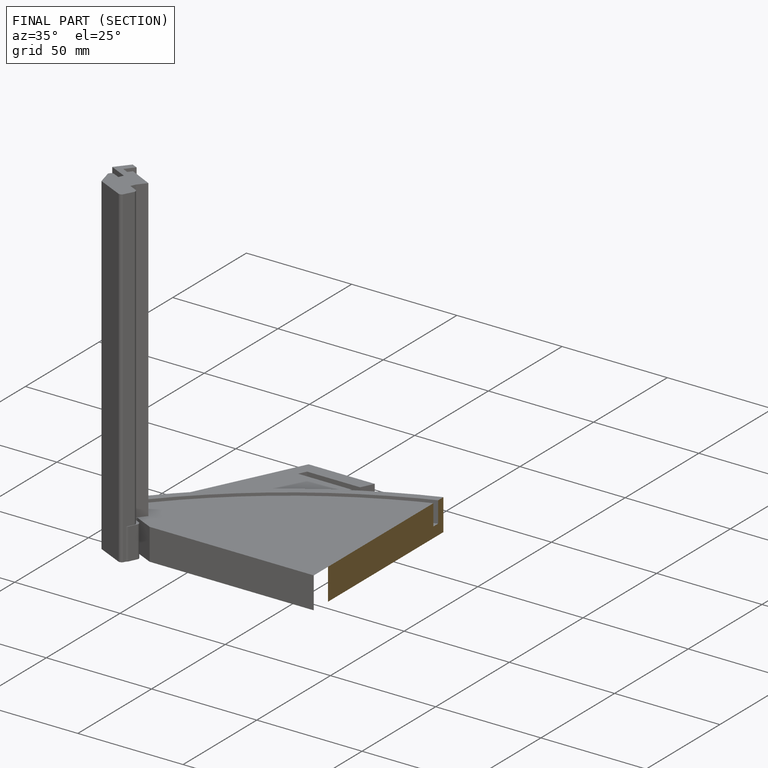
[diagram: finished part — half-section view (interior)]
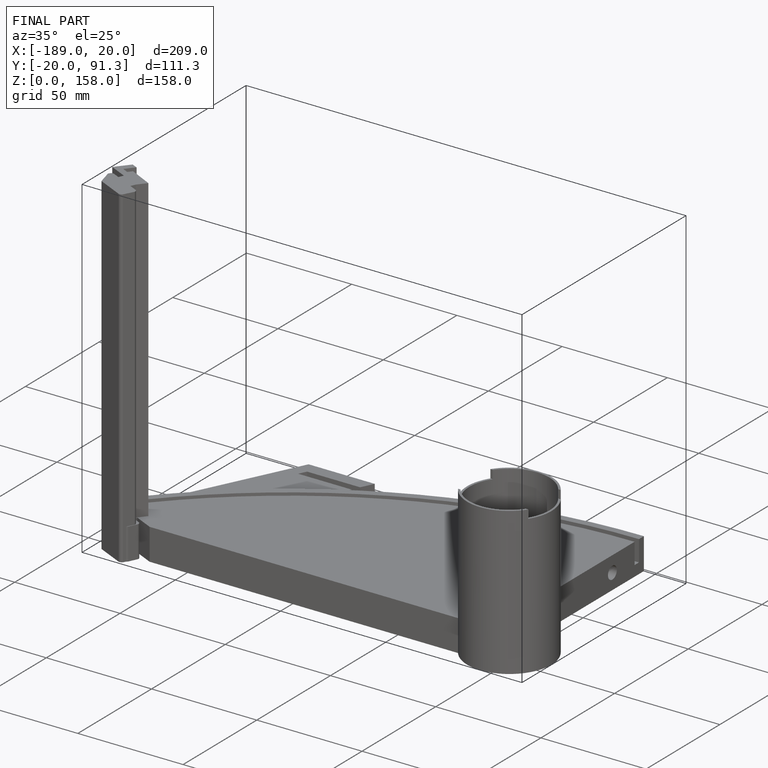
[diagram: finished part — iso view with bounding-box wireframe]
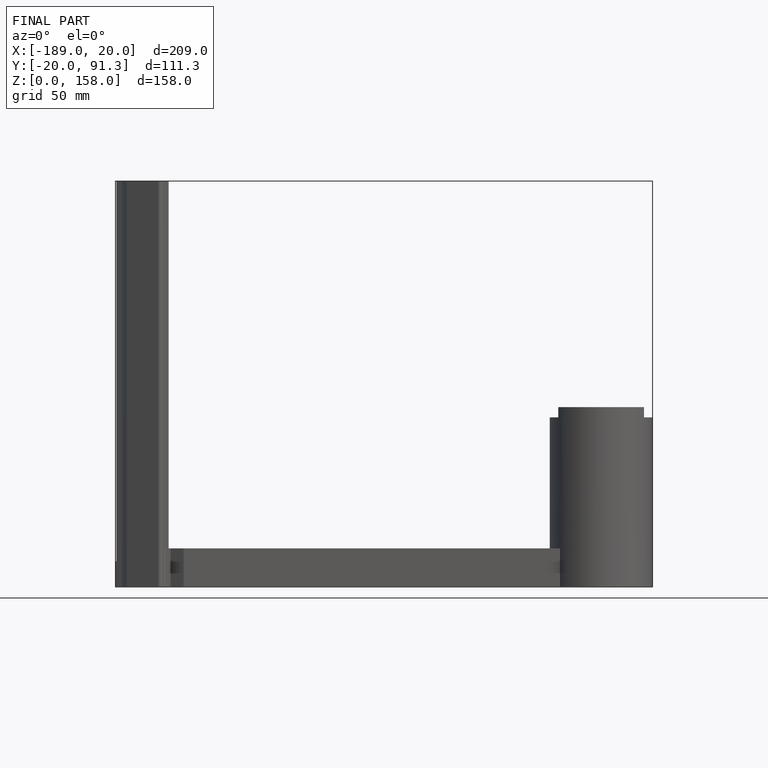
[diagram: finished part — front view with bounding-box wireframe]
